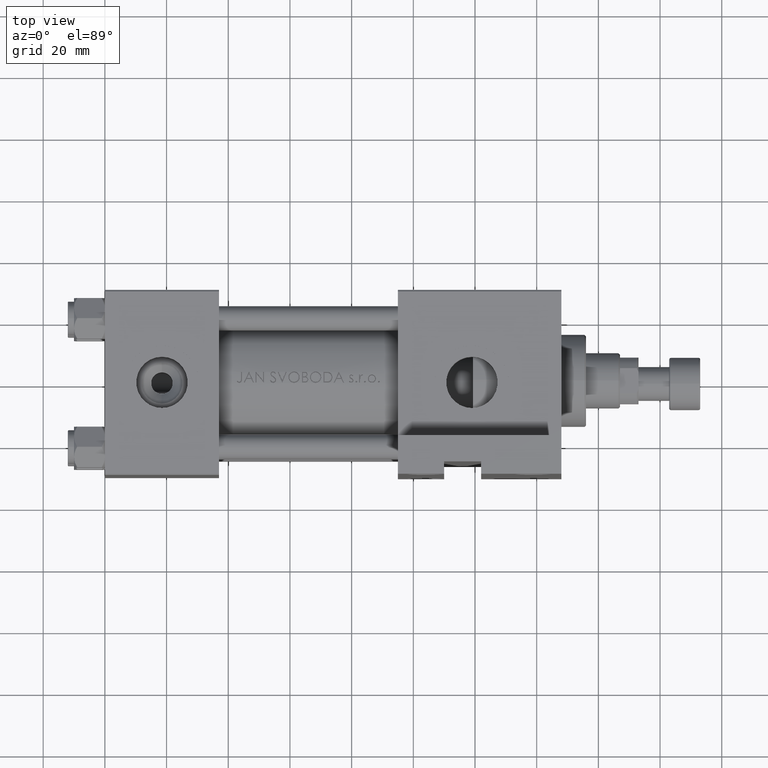
[diagram: clean part render]
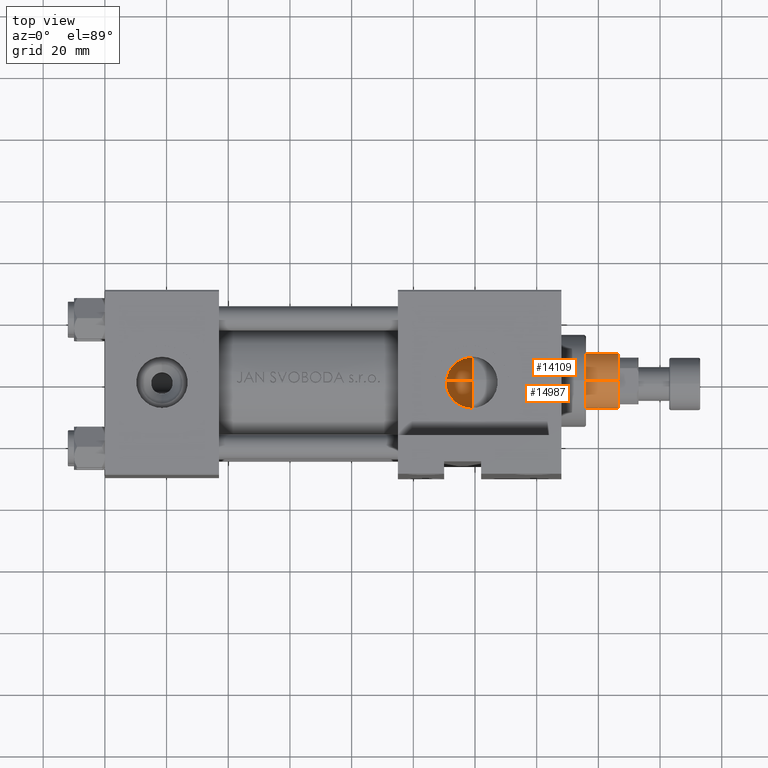
[diagram: same view with one multi-face feature highlighted, each face labeled with its STEP entity id]
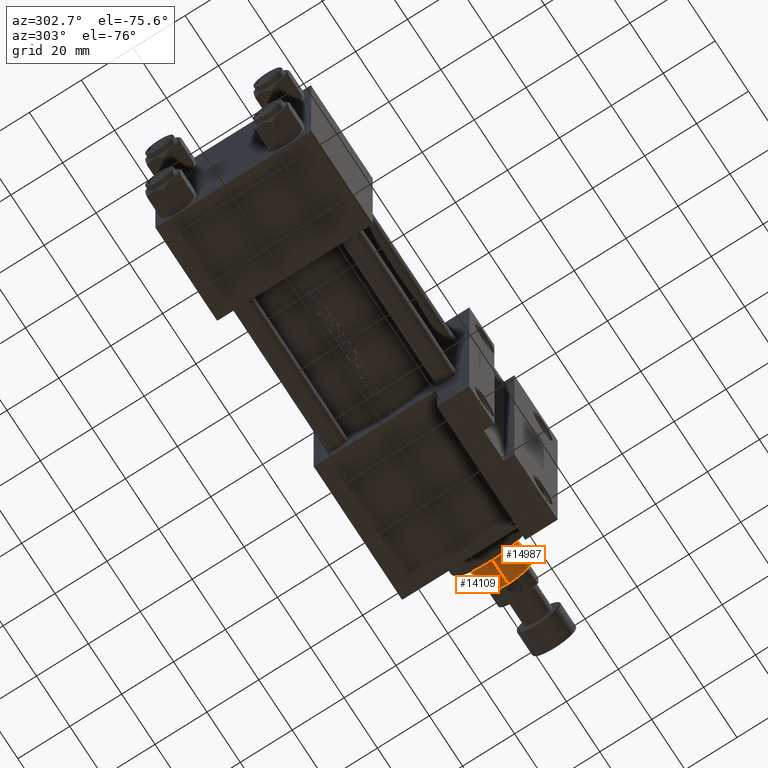
[diagram: same view with one multi-face feature highlighted, each face labeled with its STEP entity id]
A machine part, top view. The highlighted faces form ONE feature: a constant-radius fillet chain: 2 tangent blend faces with common blend radius 9 mm. The faces share edges in the B-rep.
A second angle (auxiliary view) of the same feature is appended — it is thin or edge-on in the first view.
Their STEP definitions:
[1] entity #14987 (Cylinder):
#1892 = CARTESIAN_POINT ( 'NONE',  ( -9.000000000000000000, 0.000000000000000000, 38.00000000000000000 ) ) ;
#2789 = VERTEX_POINT ( 'NONE', #4911 ) ;
#4911 = CARTESIAN_POINT ( 'NONE',  ( 9.000000000000000000, 1.102182119232617714E-15, 129.5000000000000000 ) ) ;
#6689 = FACE_OUTER_BOUND ( 'NONE', #43554, .T. ) ;
#7373 = CARTESIAN_POINT ( 'NONE',  ( -9.000000000000000000, 0.000000000000000000, 130.0000000000000000 ) ) ;
#7436 = VERTEX_POINT ( 'NONE', #43617 ) ;
#7615 = LINE ( 'NONE', #7373, #44252 ) ;
#8290 = CARTESIAN_POINT ( 'NONE',  ( 9.000000000000000000, 1.102182119232617714E-15, 38.00000000000000000 ) ) ;
#9548 = ORIENTED_EDGE ( 'NONE', *, *, #34249, .T. ) ;
#10656 = DIRECTION ( 'NONE',  ( -0.000000000000000000, -0.000000000000000000, -1.000000000000000000 ) ) ;
#12755 = DIRECTION ( 'NONE',  ( -0.000000000000000000, -0.000000000000000000, -1.000000000000000000 ) ) ;
#14987 = ADVANCED_FACE ( 'NONE', ( #6689 ), #37478, .T. ) ;
#15017 = CIRCLE ( 'NONE', #29290, 9.000000000000000000 ) ;
#16259 = LINE ( 'NONE', #46535, #35234 ) ;
#18162 = DIRECTION ( 'NONE',  ( 1.000000000000000000, 0.000000000000000000, 0.000000000000000000 ) ) ;
#18826 = DIRECTION ( 'NONE',  ( -0.000000000000000000, -0.000000000000000000, -1.000000000000000000 ) ) ;
#21087 = EDGE_CURVE ( 'NONE', #7436, #37002, #7615, .T. ) ;
#21837 = AXIS2_PLACEMENT_3D ( 'NONE', #45431, #48912, #18162 ) ;
#23878 = ORIENTED_EDGE ( 'NONE', *, *, #21087, .F. ) ;
#24262 = EDGE_CURVE ( 'NONE', #44418, #37002, #15017, .T. ) ;
#25831 = DIRECTION ( 'NONE',  ( -1.000000000000000000, 0.000000000000000000, 0.000000000000000000 ) ) ;
#28723 = DIRECTION ( 'NONE',  ( 1.000000000000000000, 0.000000000000000000, 0.000000000000000000 ) ) ;
#29290 = AXIS2_PLACEMENT_3D ( 'NONE', #46612, #36166, #28723 ) ;
#31334 = ORIENTED_EDGE ( 'NONE', *, *, #33763, .T. ) ;
#33763 = EDGE_CURVE ( 'NONE', #2789, #44418, #16259, .T. ) ;
#34249 = EDGE_CURVE ( 'NONE', #7436, #2789, #46372, .T. ) ;
#35234 = VECTOR ( 'NONE', #12755, 1000.000000000000000 ) ;
#36166 = DIRECTION ( 'NONE',  ( 0.000000000000000000, 0.000000000000000000, 1.000000000000000000 ) ) ;
#37002 = VERTEX_POINT ( 'NONE', #1892 ) ;
#37478 = CYLINDRICAL_SURFACE ( 'NONE', #45603, 9.000000000000000000 ) ;
#38369 = ORIENTED_EDGE ( 'NONE', *, *, #24262, .T. ) ;
#43554 = EDGE_LOOP ( 'NONE', ( #9548, #31334, #38369, #23878 ) ) ;
#43617 = CARTESIAN_POINT ( 'NONE',  ( -9.000000000000000000, 0.000000000000000000, 129.5000000000000000 ) ) ;
#44252 = VECTOR ( 'NONE', #18826, 1000.000000000000000 ) ;
#44418 = VERTEX_POINT ( 'NONE', #8290 ) ;
#45431 = CARTESIAN_POINT ( 'NONE',  ( 0.000000000000000000, 0.000000000000000000, 129.5000000000000000 ) ) ;
#45603 = AXIS2_PLACEMENT_3D ( 'NONE', #48411, #10656, #25831 ) ;
#46372 = CIRCLE ( 'NONE', #21837, 9.000000000000000000 ) ;
#46535 = CARTESIAN_POINT ( 'NONE',  ( 9.000000000000000000, 1.102182119232617714E-15, 130.0000000000000000 ) ) ;
#46612 = CARTESIAN_POINT ( 'NONE',  ( 0.000000000000000000, 0.000000000000000000, 38.00000000000000000 ) ) ;
#48411 = CARTESIAN_POINT ( 'NONE',  ( 0.000000000000000000, 0.000000000000000000, 130.0000000000000000 ) ) ;
#48912 = DIRECTION ( 'NONE',  ( 0.000000000000000000, 0.000000000000000000, -1.000000000000000000 ) ) ;
[2] entity #14109 (Cylinder):
#1892 = CARTESIAN_POINT ( 'NONE',  ( -9.000000000000000000, 0.000000000000000000, 38.00000000000000000 ) ) ;
#2789 = VERTEX_POINT ( 'NONE', #4911 ) ;
#3113 = DIRECTION ( 'NONE',  ( 0.000000000000000000, 0.000000000000000000, -1.000000000000000000 ) ) ;
#3437 = DIRECTION ( 'NONE',  ( -0.000000000000000000, -0.000000000000000000, -1.000000000000000000 ) ) ;
#4178 = FACE_OUTER_BOUND ( 'NONE', #6781, .T. ) ;
#4911 = CARTESIAN_POINT ( 'NONE',  ( 9.000000000000000000, 1.102182119232617714E-15, 129.5000000000000000 ) ) ;
#6162 = ORIENTED_EDGE ( 'NONE', *, *, #33763, .F. ) ;
#6781 = EDGE_LOOP ( 'NONE', ( #6162, #7920, #44860, #14302 ) ) ;
#7373 = CARTESIAN_POINT ( 'NONE',  ( -9.000000000000000000, 0.000000000000000000, 130.0000000000000000 ) ) ;
#7436 = VERTEX_POINT ( 'NONE', #43617 ) ;
#7615 = LINE ( 'NONE', #7373, #44252 ) ;
#7920 = ORIENTED_EDGE ( 'NONE', *, *, #25325, .T. ) ;
#8290 = CARTESIAN_POINT ( 'NONE',  ( 9.000000000000000000, 1.102182119232617714E-15, 38.00000000000000000 ) ) ;
#10837 = DIRECTION ( 'NONE',  ( 0.000000000000000000, 0.000000000000000000, 1.000000000000000000 ) ) ;
#12647 = EDGE_CURVE ( 'NONE', #37002, #44418, #18622, .T. ) ;
#12755 = DIRECTION ( 'NONE',  ( -0.000000000000000000, -0.000000000000000000, -1.000000000000000000 ) ) ;
#14109 = ADVANCED_FACE ( 'NONE', ( #4178 ), #30502, .T. ) ;
#14302 = ORIENTED_EDGE ( 'NONE', *, *, #12647, .T. ) ;
#16259 = LINE ( 'NONE', #46535, #35234 ) ;
#16672 = CARTESIAN_POINT ( 'NONE',  ( 0.000000000000000000, 0.000000000000000000, 38.00000000000000000 ) ) ;
#18622 = CIRCLE ( 'NONE', #36811, 9.000000000000000000 ) ;
#18628 = DIRECTION ( 'NONE',  ( -1.000000000000000000, 0.000000000000000000, 0.000000000000000000 ) ) ;
#18826 = DIRECTION ( 'NONE',  ( -0.000000000000000000, -0.000000000000000000, -1.000000000000000000 ) ) ;
#20886 = DIRECTION ( 'NONE',  ( 1.000000000000000000, 0.000000000000000000, 0.000000000000000000 ) ) ;
#21087 = EDGE_CURVE ( 'NONE', #7436, #37002, #7615, .T. ) ;
#21320 = AXIS2_PLACEMENT_3D ( 'NONE', #44839, #3113, #41113 ) ;
#23582 = CARTESIAN_POINT ( 'NONE',  ( 0.000000000000000000, 0.000000000000000000, 130.0000000000000000 ) ) ;
#25325 = EDGE_CURVE ( 'NONE', #2789, #7436, #44280, .T. ) ;
#28951 = AXIS2_PLACEMENT_3D ( 'NONE', #23582, #3437, #18628 ) ;
#30502 = CYLINDRICAL_SURFACE ( 'NONE', #28951, 9.000000000000000000 ) ;
#33763 = EDGE_CURVE ( 'NONE', #2789, #44418, #16259, .T. ) ;
#35234 = VECTOR ( 'NONE', #12755, 1000.000000000000000 ) ;
#36811 = AXIS2_PLACEMENT_3D ( 'NONE', #16672, #10837, #20886 ) ;
#37002 = VERTEX_POINT ( 'NONE', #1892 ) ;
#41113 = DIRECTION ( 'NONE',  ( 1.000000000000000000, 0.000000000000000000, 0.000000000000000000 ) ) ;
#43617 = CARTESIAN_POINT ( 'NONE',  ( -9.000000000000000000, 0.000000000000000000, 129.5000000000000000 ) ) ;
#44252 = VECTOR ( 'NONE', #18826, 1000.000000000000000 ) ;
#44280 = CIRCLE ( 'NONE', #21320, 9.000000000000000000 ) ;
#44418 = VERTEX_POINT ( 'NONE', #8290 ) ;
#44839 = CARTESIAN_POINT ( 'NONE',  ( 0.000000000000000000, 0.000000000000000000, 129.5000000000000000 ) ) ;
#44860 = ORIENTED_EDGE ( 'NONE', *, *, #21087, .T. ) ;
#46535 = CARTESIAN_POINT ( 'NONE',  ( 9.000000000000000000, 1.102182119232617714E-15, 130.0000000000000000 ) ) ;